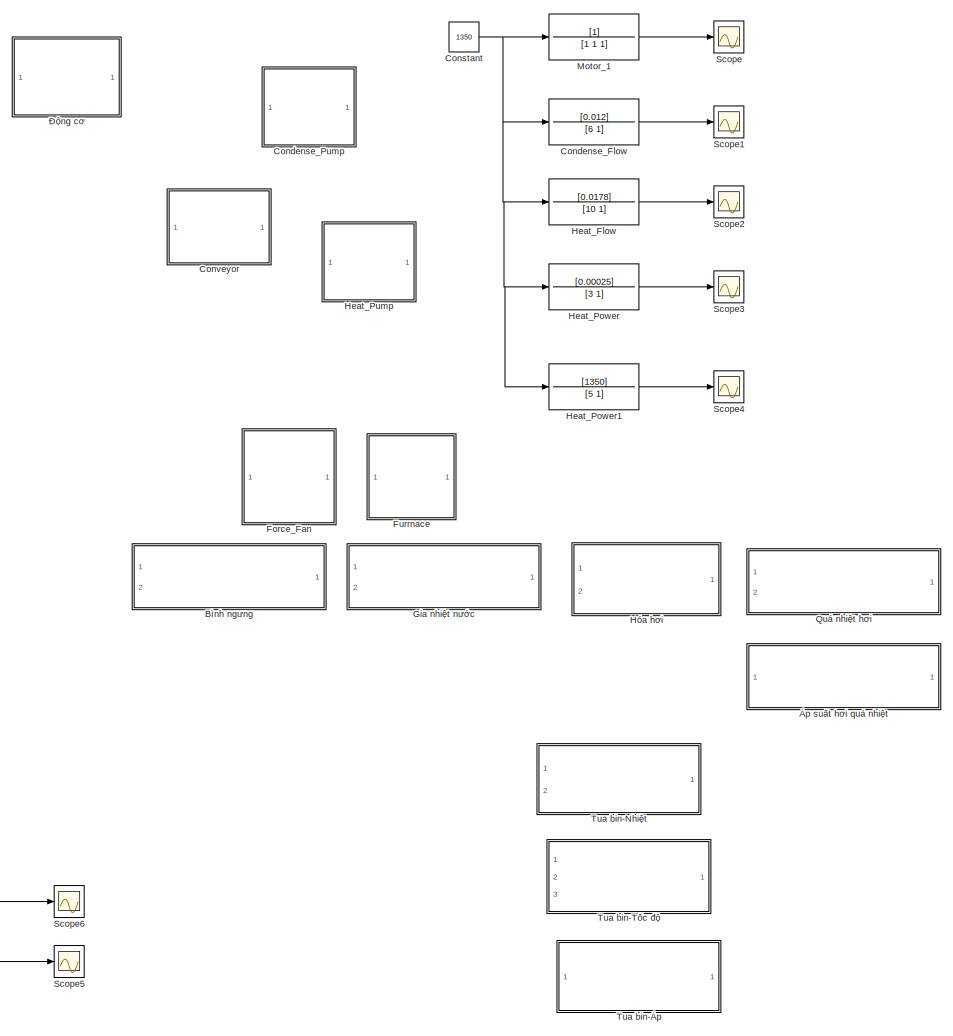
[diagram: root canvas - part 1/2, right side, full height]
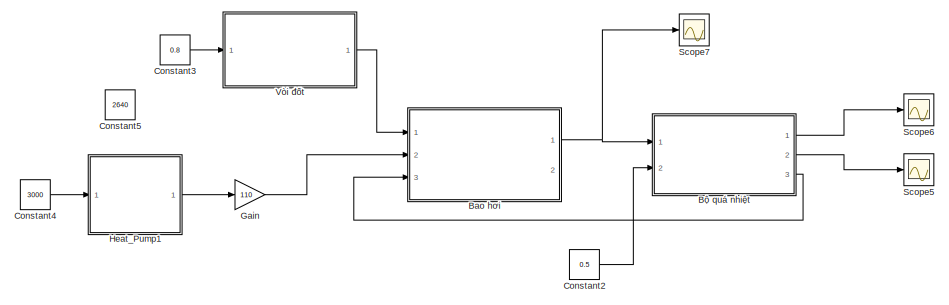
[diagram: root canvas - part 2/2, bottom left region]
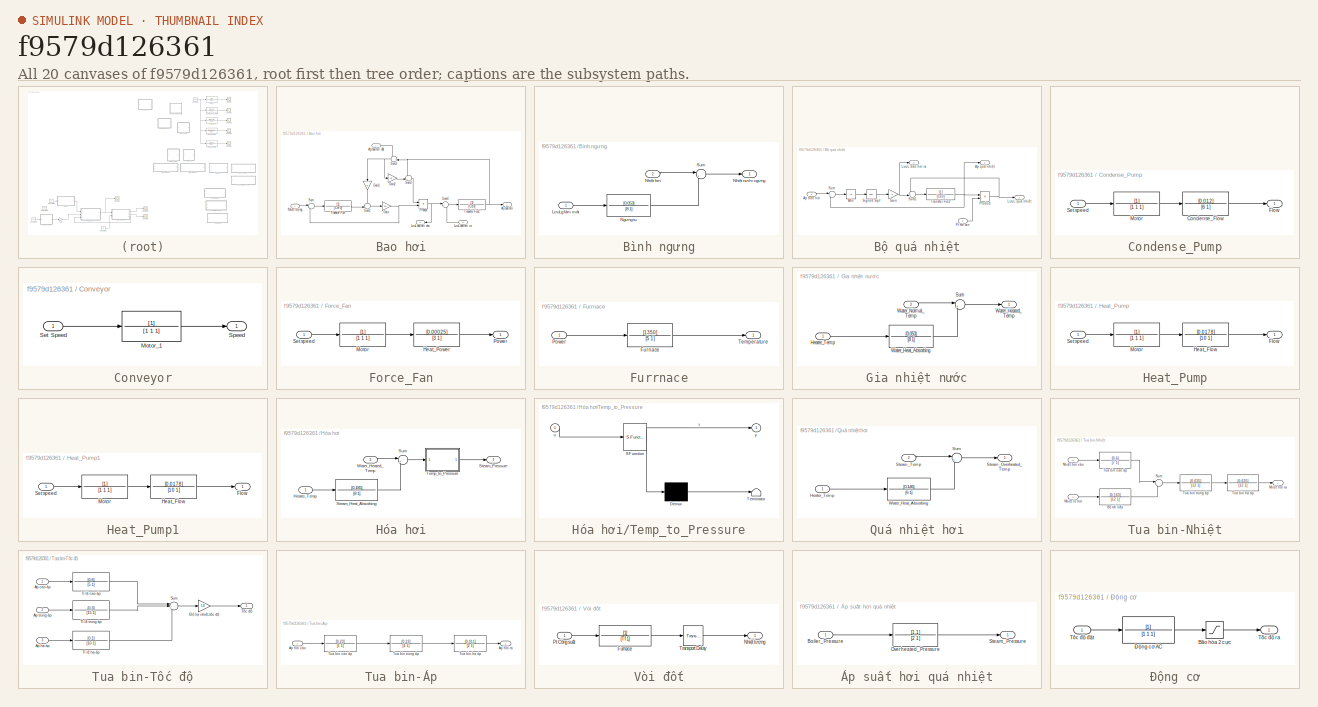
[diagram: thumbnail index - all 20 canvases of the model, root first then tree order]
MODEL slx_f9579d126361
KIND model
CONFIG AbsTol = auto
CONFIG EnableMultiTasking = off
CONFIG FixedStep = 0.05
CONFIG MaxStep = auto
CONFIG MinStep = auto
CONFIG RelTol = 1e-3
CONFIG SampleTimeConstraint = Unconstrained
CONFIG Solver = ode5
CONFIG SolverName = ode5
CONFIG StartTime = 0.0
CONFIG StopTime = 1000
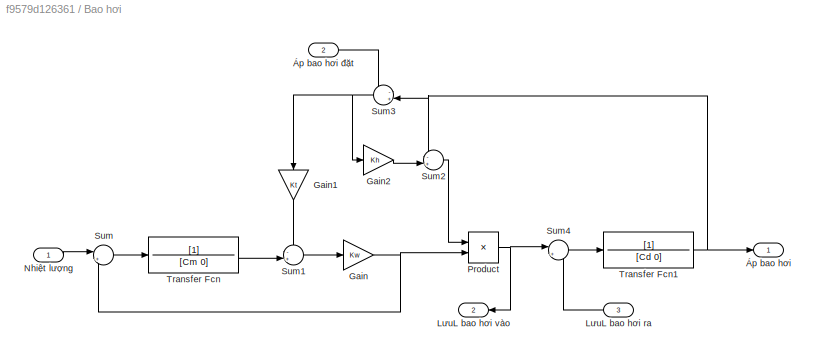
BLOCK [SubSystem] Bao hơi
  Ports = [3, 2]
  RequestExecContextInheritance = off
BLOCK [Gain] Bao hơi/Gain
  Gain = Kw
  OutDataTypeStr = Inherit: Inherit via internal rule
  ParamDataTypeStr = Inherit: Inherit via internal rule
  SaturateOnIntegerOverflow = off
BLOCK [Gain] Bao hơi/Gain1
  Gain = Kt
  OutDataTypeStr = Inherit: Inherit via internal rule
  ParamDataTypeStr = Inherit: Inherit via internal rule
  SaturateOnIntegerOverflow = off
BLOCK [Gain] Bao hơi/Gain2
  Gain = Kh
  OutDataTypeStr = Inherit: Inherit via internal rule
  ParamDataTypeStr = Inherit: Inherit via internal rule
  SaturateOnIntegerOverflow = off
BLOCK [Inport] Bao hơi/LưuL bao hơi ra
  IconDisplay = Port number
  Port = 3
BLOCK [Outport] Bao hơi/LưuL bao hơi vào
  IconDisplay = Port number
  Port = 2
BLOCK [Inport] Bao hơi/Nhiệt lượng
  IconDisplay = Port number
BLOCK [Product] Bao hơi/Product
  InputSameDT = off
  OutDataTypeStr = Inherit: Inherit via internal rule
  Ports = [2, 1]
  RndMeth = Floor
  SaturateOnIntegerOverflow = off
BLOCK [Sum] Bao hơi/Sum
  IconShape = round
  InputSameDT = off
  Inputs = |+-
  OutDataTypeStr = Inherit: Inherit via internal rule
  Ports = [2, 1]
  SaturateOnIntegerOverflow = off
BLOCK [Sum] Bao hơi/Sum1
  IconShape = round
  InputSameDT = off
  Inputs = -+|
  OutDataTypeStr = Inherit: Inherit via internal rule
  Ports = [2, 1]
  SaturateOnIntegerOverflow = off
BLOCK [Sum] Bao hơi/Sum2
  IconShape = round
  InputSameDT = off
  Inputs = -+|
  OutDataTypeStr = Inherit: Inherit via internal rule
  Ports = [2, 1]
  SaturateOnIntegerOverflow = off
BLOCK [Sum] Bao hơi/Sum3
  IconShape = round
  InputSameDT = off
  Inputs = -+|
  OutDataTypeStr = Inherit: Inherit via internal rule
  Ports = [2, 1]
  SaturateOnIntegerOverflow = off
BLOCK [Sum] Bao hơi/Sum4
  IconShape = round
  InputSameDT = off
  Inputs = |+-
  OutDataTypeStr = Inherit: Inherit via internal rule
  Ports = [2, 1]
  SaturateOnIntegerOverflow = off
BLOCK [TransferFcn] Bao hơi/Transfer Fcn
  Denominator = [Cm 0]
BLOCK [TransferFcn] Bao hơi/Transfer Fcn1
  Denominator = [Cd 0]
BLOCK [Outport] Bao hơi/Áp bao hơi
  IconDisplay = Port number
BLOCK [Inport] Bao hơi/Áp bao hơi đặt
  IconDisplay = Port number
  Port = 2
BLOCK [SubSystem] Bình ngưng
  Ports = [2, 1]
  RequestExecContextInheritance = off
BLOCK [Inport] Bình ngưng/LưuLg làm mát
  IconDisplay = Port number
BLOCK [TransferFcn] Bình ngưng/Ngưng tụ
  Denominator = [8 1]
  Numerator = [0.053]
BLOCK [Inport] Bình ngưng/Nhiệt hơi
  IconDisplay = Port number
  Port = 2
BLOCK [Outport] Bình ngưng/Nhiệt nước ngưng
  IconDisplay = Port number
BLOCK [Sum] Bình ngưng/Sum
  IconShape = round
  InputSameDT = off
  Inputs = |++
  OutDataTypeStr = Inherit: Inherit via internal rule
  Ports = [2, 1]
  SaturateOnIntegerOverflow = off
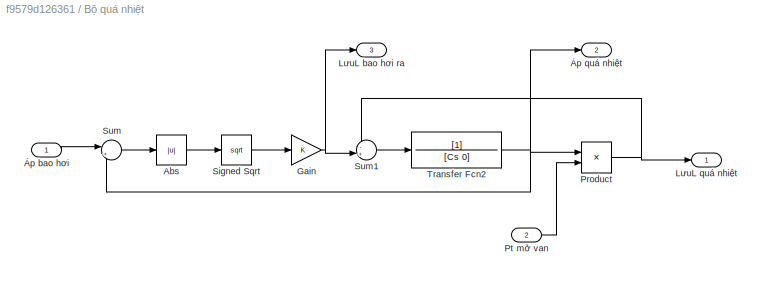
BLOCK [SubSystem] Bộ quá nhiệt
  Ports = [2, 3]
  RequestExecContextInheritance = off
BLOCK [Abs] Bộ quá nhiệt/Abs
  SaturateOnIntegerOverflow = off
BLOCK [Gain] Bộ quá nhiệt/Gain
  Gain = K
  OutDataTypeStr = Inherit: Inherit via internal rule
  ParamDataTypeStr = Inherit: Inherit via internal rule
  SaturateOnIntegerOverflow = off
BLOCK [Outport] Bộ quá nhiệt/LưuL bao hơi ra
  IconDisplay = Port number
  Port = 3
BLOCK [Outport] Bộ quá nhiệt/LưuL quá nhiệt
  IconDisplay = Port number
BLOCK [Product] Bộ quá nhiệt/Product
  InputSameDT = off
  OutDataTypeStr = Inherit: Inherit via internal rule
  Ports = [2, 1]
  RndMeth = Floor
  SaturateOnIntegerOverflow = off
BLOCK [Inport] Bộ quá nhiệt/Pt mở van
  IconDisplay = Port number
  Port = 2
BLOCK [Sqrt] Bộ quá nhiệt/Signed Sqrt
BLOCK [Sum] Bộ quá nhiệt/Sum
  IconShape = round
  InputSameDT = off
  Inputs = |+-
  OutDataTypeStr = Inherit: Inherit via internal rule
  Ports = [2, 1]
  SaturateOnIntegerOverflow = off
BLOCK [Sum] Bộ quá nhiệt/Sum1
  IconShape = round
  InputSameDT = off
  Inputs = -+|
  OutDataTypeStr = Inherit: Inherit via internal rule
  Ports = [2, 1]
  SaturateOnIntegerOverflow = off
BLOCK [TransferFcn] Bộ quá nhiệt/Transfer Fcn2
  Denominator = [Cs 0]
BLOCK [Inport] Bộ quá nhiệt/Áp bao hơi
  IconDisplay = Port number
BLOCK [Outport] Bộ quá nhiệt/Áp quá nhiệt
  IconDisplay = Port number
  Port = 2
BLOCK [TransferFcn] Condense_Flow
  Denominator = [6 1]
  Numerator = [0.012]
BLOCK [SubSystem] Condense_Pump
  Ports = [1, 1]
  RequestExecContextInheritance = off
BLOCK [TransferFcn] Condense_Pump/Condense_Flow
  Denominator = [6 1]
  Numerator = [0.012]
BLOCK [Outport] Condense_Pump/Flow
  IconDisplay = Port number
BLOCK [TransferFcn] Condense_Pump/Motor
  Denominator = [1 1 1]
BLOCK [Inport] Condense_Pump/Set speed
  IconDisplay = Port number
BLOCK [Constant] Constant
  Value = 1350
BLOCK [Constant] Constant2
  Value = 0.5
BLOCK [Constant] Constant3
  Value = 0.8
BLOCK [Constant] Constant4
  Value = 3000
BLOCK [Constant] Constant5
  Value = 2640
BLOCK [SubSystem] Conveyor
  Ports = [1, 1]
  RequestExecContextInheritance = off
BLOCK [TransferFcn] Conveyor/Motor_1
  Denominator = [1 1 1]
BLOCK [Inport] Conveyor/Set Speed
  IconDisplay = Port number
BLOCK [Outport] Conveyor/Speed
  IconDisplay = Port number
BLOCK [SubSystem] Force_Fan
  Ports = [1, 1]
  RequestExecContextInheritance = off
BLOCK [TransferFcn] Force_Fan/Heat_Power
  Denominator = [3 1]
  Numerator = [0.00025]
BLOCK [TransferFcn] Force_Fan/Motor
  Denominator = [1 1 1]
BLOCK [Outport] Force_Fan/Power
  IconDisplay = Port number
BLOCK [Inport] Force_Fan/Set speed
  IconDisplay = Port number
BLOCK [SubSystem] Furrnace
  Ports = [1, 1]
  RequestExecContextInheritance = off
BLOCK [TransferFcn] Furrnace/Furnace
  Denominator = [5 1]
  Numerator = [1350]
BLOCK [Inport] Furrnace/Power
  IconDisplay = Port number
BLOCK [Outport] Furrnace/Temperature
  IconDisplay = Port number
BLOCK [Gain] Gain
  Gain = 110
  OutDataTypeStr = Inherit: Inherit via internal rule
  ParamDataTypeStr = Inherit: Inherit via internal rule
  SaturateOnIntegerOverflow = off
BLOCK [SubSystem] Gia nhiệt nước
  Ports = [2, 1]
  RequestExecContextInheritance = off
BLOCK [Inport] Gia nhiệt nước/Heater_Temp
  IconDisplay = Port number
BLOCK [Sum] Gia nhiệt nước/Sum
  IconShape = round
  InputSameDT = off
  Inputs = |++
  OutDataTypeStr = Inherit: Inherit via internal rule
  Ports = [2, 1]
  SaturateOnIntegerOverflow = off
BLOCK [TransferFcn] Gia nhiệt nước/Water_Heat_Absorbing
  Denominator = [8 1]
  Numerator = [0.053]
BLOCK [Outport] Gia nhiệt nước/Water_Heated_Temp
  IconDisplay = Port number
BLOCK [Inport] Gia nhiệt nước/Water_Normal_Temp
  IconDisplay = Port number
  Port = 2
BLOCK [TransferFcn] Heat_Flow
  Denominator = [10 1]
  Numerator = [0.0178]
BLOCK [TransferFcn] Heat_Power
  Denominator = [3 1]
  Numerator = [0.00025]
BLOCK [TransferFcn] Heat_Power1
  Denominator = [5 1]
  Numerator = [1350]
BLOCK [SubSystem] Heat_Pump
  Ports = [1, 1]
  RequestExecContextInheritance = off
BLOCK [Outport] Heat_Pump/Flow
  IconDisplay = Port number
BLOCK [TransferFcn] Heat_Pump/Heat_Flow
  Denominator = [10 1]
  Numerator = [0.0178]
BLOCK [TransferFcn] Heat_Pump/Motor
  Denominator = [1 1 1]
BLOCK [Inport] Heat_Pump/Set speed
  IconDisplay = Port number
BLOCK [SubSystem] Heat_Pump1
  Ports = [1, 1]
  RequestExecContextInheritance = off
BLOCK [Outport] Heat_Pump1/Flow
  IconDisplay = Port number
BLOCK [TransferFcn] Heat_Pump1/Heat_Flow
  Denominator = [10 1]
  Numerator = [0.0178]
BLOCK [TransferFcn] Heat_Pump1/Motor
  Denominator = [1 1 1]
BLOCK [Inport] Heat_Pump1/Set speed
  IconDisplay = Port number
BLOCK [SubSystem] Hóa hơi
  Ports = [2, 1]
  RequestExecContextInheritance = off
BLOCK [Inport] Hóa hơi/Heater_Temp
  IconDisplay = Port number
BLOCK [TransferFcn] Hóa hơi/Steam_Heat_Absorbing
  Denominator = [8 1]
  Numerator = [0.185]
BLOCK [Outport] Hóa hơi/Steam_Pressure
  IconDisplay = Port number
BLOCK [Sum] Hóa hơi/Sum
  IconShape = round
  InputSameDT = off
  Inputs = |++
  OutDataTypeStr = Inherit: Inherit via internal rule
  Ports = [2, 1]
  SaturateOnIntegerOverflow = off
BLOCK [SubSystem] Hóa hơi/Temp_to_Pressure
  ErrorFcn = Stateflow.Translate.translate
  PermitHierarchicalResolution = ExplicitOnly
  Ports = [1, 1]
  RequestExecContextInheritance = off
  SFBlockType = MATLAB Function
  TreatAsAtomicUnit = on
BLOCK [Demux] Hóa hơi/Temp_to_Pressure/ Demux 
  Outputs = 1
  Ports = [1, 1]
BLOCK [S-Function] Hóa hơi/Temp_to_Pressure/ SFunction 
  EnableBusSupport = on
  FunctionName = sf_sfun
  PortCounts = [1 2]
  Ports = [1, 2]
  SFcnIsStateOwnerBlock = off
  SFunctionDeploymentMode = off
  Tag = Stateflow S-Function Model 2
BLOCK [Terminator] Hóa hơi/Temp_to_Pressure/ Terminator 
BLOCK [Inport] Hóa hơi/Temp_to_Pressure/u
  IconDisplay = Port number
BLOCK [Outport] Hóa hơi/Temp_to_Pressure/y
  IconDisplay = Port number
BLOCK [Inport] Hóa hơi/Water_Heated_Temp
  IconDisplay = Port number
  Port = 2
BLOCK [TransferFcn] Motor_1
  Denominator = [1 1 1]
BLOCK [SubSystem] Quá nhiệt hơi
  Ports = [2, 1]
  RequestExecContextInheritance = off
BLOCK [Inport] Quá nhiệt hơi/Heater_Temp
  IconDisplay = Port number
BLOCK [Outport] Quá nhiệt hơi/Steam_Overheated_Temp
  IconDisplay = Port number
BLOCK [Inport] Quá nhiệt hơi/Steam_Temp
  IconDisplay = Port number
  Port = 2
BLOCK [Sum] Quá nhiệt hơi/Sum
  IconShape = round
  InputSameDT = off
  Inputs = |++
  OutDataTypeStr = Inherit: Inherit via internal rule
  Ports = [2, 1]
  SaturateOnIntegerOverflow = off
BLOCK [TransferFcn] Quá nhiệt hơi/Water_Heat_Absorbing
  Denominator = [6 1]
  Numerator = [0.146]
BLOCK [Scope] Scope
  Floating = off
  NumInputPorts = 1
  Ports = [1]
  ScopeSpecificationString = Simulink.scopes.TimeScopeBlockCfg('CurrentConfiguration', extmgr.ConfigurationSet(extmgr.Configuration('Core','General UI',true),extmgr.Configuration('Core','Source UI',true),extmgr.Configuration('Sources','WiredSimulink',true),extmgr.Configuration('Visuals','Time Domain',true,'SerializedDisplays',{struct('MinYLimReal','-196.25506','MaxYLimReal','1766.29552','YLabelReal','','MinYLimMag',' 0.00000'...<+1374ch>
BLOCK [Scope] Scope1
  Floating = off
  NumInputPorts = 1
  Ports = [1]
  ScopeSpecificationString = Simulink.scopes.TimeScopeBlockCfg('CurrentConfiguration', extmgr.ConfigurationSet(extmgr.Configuration('Core','General UI',true),extmgr.Configuration('Core','Source UI',true),extmgr.Configuration('Sources','WiredSimulink',true,'DataLoggingVariableName','ScopeData1'),extmgr.Configuration('Visuals','Time Domain',true,'SerializedDisplays',{struct('MinYLimReal','-2.025','MaxYLimReal','18.225','YLabelR...<+1437ch>
BLOCK [Scope] Scope2
  Floating = off
  NumInputPorts = 1
  Ports = [1]
  ScopeSpecificationString = Simulink.scopes.TimeScopeBlockCfg('CurrentConfiguration', extmgr.ConfigurationSet(extmgr.Configuration('Core','General UI',true),extmgr.Configuration('Core','Source UI',true),extmgr.Configuration('Sources','WiredSimulink',true,'DataLoggingVariableName','ScopeData2'),extmgr.Configuration('Visuals','Time Domain',true,'SerializedDisplays',{struct('MinYLimReal','-2.98351','MaxYLimReal','26.8516','YLab...<+1446ch>
BLOCK [Scope] Scope3
  Floating = off
  NumInputPorts = 1
  Ports = [1]
  ScopeSpecificationString = Simulink.scopes.TimeScopeBlockCfg('CurrentConfiguration', extmgr.ConfigurationSet(extmgr.Configuration('Core','General UI',true),extmgr.Configuration('Core','Source UI',true),extmgr.Configuration('Sources','WiredSimulink',true,'DataLoggingVariableName','ScopeData1'),extmgr.Configuration('Visuals','Time Domain',true,'SerializedDisplays',{struct('MinYLimReal','-0.04219','MaxYLimReal','0.37969','YLab...<+1442ch>
BLOCK [Scope] Scope4
  Floating = off
  NumInputPorts = 1
  Ports = [1]
  ScopeSpecificationString = Simulink.scopes.TimeScopeBlockCfg('CurrentConfiguration', extmgr.ConfigurationSet(extmgr.Configuration('Core','General UI',true),extmgr.Configuration('Core','Source UI',true),extmgr.Configuration('Sources','WiredSimulink',true,'DataLoggingVariableName','ScopeData2'),extmgr.Configuration('Visuals','Time Domain',true,'SerializedDisplays',{struct('MinYLimReal','-227802.15733','MaxYLimReal','2050219.4...<+1486ch>
BLOCK [Scope] Scope5
  Floating = off
  NumInputPorts = 1
  Ports = [1]
  ScopeSpecificationString = Simulink.scopes.TimeScopeBlockCfg('CurrentConfiguration', extmgr.ConfigurationSet(extmgr.Configuration('Core','General UI',true),extmgr.Configuration('Core','Source UI',true),extmgr.Configuration('Sources','WiredSimulink',true,'DataLoggingVariableName','ScopeData1'),extmgr.Configuration('Visuals','Time Domain',true,'SerializedDisplays',{struct('MinYLimReal','-486.39733','MaxYLimReal','4377.57595',...<+1466ch>
BLOCK [Scope] Scope6
  Floating = off
  NumInputPorts = 1
  Ports = [1]
  ScopeSpecificationString = Simulink.scopes.TimeScopeBlockCfg('CurrentConfiguration', extmgr.ConfigurationSet(extmgr.Configuration('Core','General UI',true),extmgr.Configuration('Core','Source UI',true),extmgr.Configuration('Sources','WiredSimulink',true,'DataLoggingVariableName','ScopeData2'),extmgr.Configuration('Visuals','Time Domain',true,'SerializedDisplays',{struct('MinYLimReal','-243.19866','MaxYLimReal','2188.78798',...<+1465ch>
BLOCK [Scope] Scope7
  Floating = off
  NumInputPorts = 1
  Ports = [1]
  ScopeSpecificationString = Simulink.scopes.TimeScopeBlockCfg('CurrentConfiguration', extmgr.ConfigurationSet(extmgr.Configuration('Core','General UI',true),extmgr.Configuration('Core','Source UI',true),extmgr.Configuration('Sources','WiredSimulink',true,'DataLoggingVariableName','ScopeData3'),extmgr.Configuration('Visuals','Time Domain',true,'SerializedDisplays',{struct('MinYLimReal','2622.18889','MaxYLimReal','2633.67077',...<+1464ch>
BLOCK [SubSystem] Tua bin-Nhiệt
  Ports = [2, 1]
  RequestExecContextInheritance = off
BLOCK [TransferFcn] Tua bin-Nhiệt/Bộ tái sấy
  Denominator = [12 1]
  Numerator = [0.163]
BLOCK [Outport] Tua bin-Nhiệt/Nhiệt hơi ra
  IconDisplay = Port number
BLOCK [Inport] Tua bin-Nhiệt/Nhiệt hơi vào
  IconDisplay = Port number
  Port = 2
BLOCK [Inport] Tua bin-Nhiệt/Nhiệt lò hơi
  IconDisplay = Port number
BLOCK [Sum] Tua bin-Nhiệt/Sum
  IconShape = round
  InputSameDT = off
  Inputs = |++
  OutDataTypeStr = Inherit: Inherit via internal rule
  Ports = [2, 1]
  SaturateOnIntegerOverflow = off
BLOCK [TransferFcn] Tua bin-Nhiệt/Tua bin cao áp
  Denominator = [7 1]
  Numerator = [0.6]
BLOCK [TransferFcn] Tua bin-Nhiệt/Tua bin hạ áp
  Denominator = [12 1]
  Numerator = [0.635]
BLOCK [TransferFcn] Tua bin-Nhiệt/Tua bin trung áp
  Denominator = [12 1]
  Numerator = [0.635]
BLOCK [SubSystem] Tua bin-Tốc độ
  Ports = [3, 1]
  RequestExecContextInheritance = off
BLOCK [Sum] Tua bin-Tốc độ/Sum
  IconShape = round
  InputSameDT = off
  Inputs = |+++
  OutDataTypeStr = Inherit: Inherit via internal rule
  Ports = [3, 1]
  SaturateOnIntegerOverflow = off
BLOCK [TransferFcn] Tua bin-Tốc độ/Tỉ lệ cao áp
  Denominator = [5 1]
  Numerator = [0.6]
BLOCK [TransferFcn] Tua bin-Tốc độ/Tỉ lệ hạ áp
  Denominator = [10 1]
  Numerator = [0.1]
BLOCK [TransferFcn] Tua bin-Tốc độ/Tỉ lệ trung áp
  Denominator = [15 1]
  Numerator = [0.3]
BLOCK [Outport] Tua bin-Tốc độ/Tốc độ
  IconDisplay = Port number
BLOCK [Inport] Tua bin-Tốc độ/Áp cao áp
  IconDisplay = Port number
BLOCK [Inport] Tua bin-Tốc độ/Áp hạ áp
  IconDisplay = Port number
  Port = 3
BLOCK [Inport] Tua bin-Tốc độ/Áp trung áp
  IconDisplay = Port number
  Port = 2
BLOCK [Gain] Tua bin-Tốc độ/Độ lợi nhiệt-tốc độ
  Gain = 10
  OutDataTypeStr = Inherit: Inherit via internal rule
  ParamDataTypeStr = Inherit: Inherit via internal rule
  SaturateOnIntegerOverflow = off
BLOCK [SubSystem] Tua bin-Áp
  Ports = [1, 1]
  RequestExecContextInheritance = off
BLOCK [TransferFcn] Tua bin-Áp/Tua bin cao áp
  Denominator = [1 1]
  Numerator = [0.23]
BLOCK [TransferFcn] Tua bin-Áp/Tua bin hạ áp
  Denominator = [2 1]
  Numerator = [0.011]
BLOCK [TransferFcn] Tua bin-Áp/Tua bin trung áp
  Denominator = [4 1]
  Numerator = [0.23]
BLOCK [Outport] Tua bin-Áp/Áp hơi ra
  IconDisplay = Port number
BLOCK [Inport] Tua bin-Áp/Áp hơi vào
  IconDisplay = Port number
BLOCK [SubSystem] Vòi đốt
  Ports = [1, 1]
  RequestExecContextInheritance = off
BLOCK [TransferFcn] Vòi đốt/Furnace
  Denominator = [Tf 1]
BLOCK [Outport] Vòi đốt/Nhiệt lượng
  IconDisplay = Port number
BLOCK [Inport] Vòi đốt/Pt Công suất
  IconDisplay = Port number
BLOCK [TransportDelay] Vòi đốt/Transport Delay
  DelayTime = Td
  Ports = [1, 1]
BLOCK [SubSystem] Áp suất hơi quá nhiệt
  Ports = [1, 1]
  RequestExecContextInheritance = off
BLOCK [Inport] Áp suất hơi quá nhiệt/Boiler_Pressure
  IconDisplay = Port number
BLOCK [TransferFcn] Áp suất hơi quá nhiệt/Overheated_Pressure
  Denominator = [2 1]
  Numerator = [1.1]
BLOCK [Outport] Áp suất hơi quá nhiệt/Steam_Pressure
  IconDisplay = Port number
BLOCK [SubSystem] Động cơ
  Ports = [1, 1]
  RequestExecContextInheritance = off
BLOCK [Saturate] Động cơ/Bão hòa 2 cực
  InputPortMap = u0
  LowerLimit = 0
  Ports = [1, 1]
  UpperLimit = 1500
BLOCK [Outport] Động cơ/Tốc độ ra
  IconDisplay = Port number
BLOCK [Inport] Động cơ/Tốc độ đặt
  IconDisplay = Port number
BLOCK [TransferFcn] Động cơ/Động cơ AC
  Denominator = [1 1 1]
LINE Bao hơi/Gain1:1 -> Bao hơi/Sum1:1
LINE Bao hơi/Gain2:1 -> Bao hơi/Sum2:2
NET Bao hơi/Gain:1 -> Bao hơi/Product:2, Bao hơi/Sum:2
LINE Bao hơi/LưuL bao hơi ra:1 -> Bao hơi/Sum4:2
LINE Bao hơi/Nhiệt lượng:1 -> Bao hơi/Sum:1
NET Bao hơi/Product:1 -> Bao hơi/LưuL bao hơi vào:1, Bao hơi/Sum4:1
LINE Bao hơi/Sum1:1 -> Bao hơi/Gain:1
LINE Bao hơi/Sum2:1 -> Bao hơi/Product:1
NET Bao hơi/Sum3:1 -> Bao hơi/Gain1:1, Bao hơi/Gain2:1
LINE Bao hơi/Sum4:1 -> Bao hơi/Transfer Fcn1:1
LINE Bao hơi/Sum:1 -> Bao hơi/Transfer Fcn:1
NET Bao hơi/Transfer Fcn1:1 -> Bao hơi/Sum2:1, Bao hơi/Sum3:2, Bao hơi/Áp bao hơi:1
LINE Bao hơi/Transfer Fcn:1 -> Bao hơi/Sum1:2
LINE Bao hơi/Áp bao hơi đặt:1 -> Bao hơi/Sum3:1
NET Bao hơi:1 -> Bộ quá nhiệt:1, Scope7:1
LINE Bình ngưng/LưuLg làm mát:1 -> Bình ngưng/Ngưng tụ:1
LINE Bình ngưng/Ngưng tụ:1 -> Bình ngưng/Sum:2
LINE Bình ngưng/Nhiệt hơi:1 -> Bình ngưng/Sum:1
LINE Bình ngưng/Sum:1 -> Bình ngưng/Nhiệt nước ngưng:1
LINE Bộ quá nhiệt/Abs:1 -> Bộ quá nhiệt/Signed Sqrt:1
NET Bộ quá nhiệt/Gain:1 -> Bộ quá nhiệt/LưuL bao hơi ra:1, Bộ quá nhiệt/Sum1:2
NET Bộ quá nhiệt/Product:1 -> Bộ quá nhiệt/LưuL quá nhiệt:1, Bộ quá nhiệt/Sum1:1
LINE Bộ quá nhiệt/Pt mở van:1 -> Bộ quá nhiệt/Product:2
LINE Bộ quá nhiệt/Signed Sqrt:1 -> Bộ quá nhiệt/Gain:1
LINE Bộ quá nhiệt/Sum1:1 -> Bộ quá nhiệt/Transfer Fcn2:1
LINE Bộ quá nhiệt/Sum:1 -> Bộ quá nhiệt/Abs:1
NET Bộ quá nhiệt/Transfer Fcn2:1 -> Bộ quá nhiệt/Product:1, Bộ quá nhiệt/Sum:2, Bộ quá nhiệt/Áp quá nhiệt:1
LINE Bộ quá nhiệt/Áp bao hơi:1 -> Bộ quá nhiệt/Sum:1
LINE Bộ quá nhiệt:1 -> Scope6:1
LINE Bộ quá nhiệt:2 -> Scope5:1
LINE Bộ quá nhiệt:3 -> Bao hơi:3
LINE Condense_Flow:1 -> Scope1:1
LINE Condense_Pump/Condense_Flow:1 -> Condense_Pump/Flow:1
LINE Condense_Pump/Motor:1 -> Condense_Pump/Condense_Flow:1
LINE Condense_Pump/Set speed:1 -> Condense_Pump/Motor:1
LINE Constant2:1 -> Bộ quá nhiệt:2
LINE Constant3:1 -> Vòi đốt:1
LINE Constant4:1 -> Heat_Pump1:1
NET Constant:1 -> Condense_Flow:1, Heat_Flow:1, Heat_Power1:1, Heat_Power:1, Motor_1:1
LINE Conveyor/Motor_1:1 -> Conveyor/Speed:1
LINE Conveyor/Set Speed:1 -> Conveyor/Motor_1:1
LINE Force_Fan/Heat_Power:1 -> Force_Fan/Power:1
LINE Force_Fan/Motor:1 -> Force_Fan/Heat_Power:1
LINE Force_Fan/Set speed:1 -> Force_Fan/Motor:1
LINE Furrnace/Furnace:1 -> Furrnace/Temperature:1
LINE Furrnace/Power:1 -> Furrnace/Furnace:1
LINE Gain:1 -> Bao hơi:2
LINE Gia nhiệt nước/Heater_Temp:1 -> Gia nhiệt nước/Water_Heat_Absorbing:1
LINE Gia nhiệt nước/Sum:1 -> Gia nhiệt nước/Water_Heated_Temp:1
LINE Gia nhiệt nước/Water_Heat_Absorbing:1 -> Gia nhiệt nước/Sum:2
LINE Gia nhiệt nước/Water_Normal_Temp:1 -> Gia nhiệt nước/Sum:1
LINE Heat_Flow:1 -> Scope2:1
LINE Heat_Power1:1 -> Scope4:1
LINE Heat_Power:1 -> Scope3:1
LINE Heat_Pump/Heat_Flow:1 -> Heat_Pump/Flow:1
LINE Heat_Pump/Motor:1 -> Heat_Pump/Heat_Flow:1
LINE Heat_Pump/Set speed:1 -> Heat_Pump/Motor:1
LINE Heat_Pump1/Heat_Flow:1 -> Heat_Pump1/Flow:1
LINE Heat_Pump1/Motor:1 -> Heat_Pump1/Heat_Flow:1
LINE Heat_Pump1/Set speed:1 -> Heat_Pump1/Motor:1
LINE Heat_Pump1:1 -> Gain:1
LINE Hóa hơi/Heater_Temp:1 -> Hóa hơi/Steam_Heat_Absorbing:1
LINE Hóa hơi/Steam_Heat_Absorbing:1 -> Hóa hơi/Sum:2
LINE Hóa hơi/Sum:1 -> Hóa hơi/Temp_to_Pressure:1
LINE Hóa hơi/Temp_to_Pressure:1 -> Hóa hơi/Steam_Pressure:1
LINE Hóa hơi/Water_Heated_Temp:1 -> Hóa hơi/Sum:1
LINE Motor_1:1 -> Scope:1
LINE Quá nhiệt hơi/Heater_Temp:1 -> Quá nhiệt hơi/Water_Heat_Absorbing:1
LINE Quá nhiệt hơi/Steam_Temp:1 -> Quá nhiệt hơi/Sum:1
LINE Quá nhiệt hơi/Sum:1 -> Quá nhiệt hơi/Steam_Overheated_Temp:1
LINE Quá nhiệt hơi/Water_Heat_Absorbing:1 -> Quá nhiệt hơi/Sum:2
LINE Tua bin-Nhiệt/Bộ tái sấy:1 -> Tua bin-Nhiệt/Sum:2
LINE Tua bin-Nhiệt/Nhiệt hơi vào:1 -> Tua bin-Nhiệt/Tua bin cao áp:1
LINE Tua bin-Nhiệt/Nhiệt lò hơi:1 -> Tua bin-Nhiệt/Bộ tái sấy:1
LINE Tua bin-Nhiệt/Sum:1 -> Tua bin-Nhiệt/Tua bin trung áp:1
LINE Tua bin-Nhiệt/Tua bin cao áp:1 -> Tua bin-Nhiệt/Sum:1
LINE Tua bin-Nhiệt/Tua bin hạ áp:1 -> Tua bin-Nhiệt/Nhiệt hơi ra:1
LINE Tua bin-Nhiệt/Tua bin trung áp:1 -> Tua bin-Nhiệt/Tua bin hạ áp:1
LINE Tua bin-Tốc độ/Sum:1 -> Tua bin-Tốc độ/Độ lợi nhiệt-tốc độ:1
LINE Tua bin-Tốc độ/Tỉ lệ cao áp:1 -> Tua bin-Tốc độ/Sum:1
LINE Tua bin-Tốc độ/Tỉ lệ hạ áp:1 -> Tua bin-Tốc độ/Sum:3
LINE Tua bin-Tốc độ/Tỉ lệ trung áp:1 -> Tua bin-Tốc độ/Sum:2
LINE Tua bin-Tốc độ/Áp cao áp:1 -> Tua bin-Tốc độ/Tỉ lệ cao áp:1
LINE Tua bin-Tốc độ/Áp hạ áp:1 -> Tua bin-Tốc độ/Tỉ lệ hạ áp:1
LINE Tua bin-Tốc độ/Áp trung áp:1 -> Tua bin-Tốc độ/Tỉ lệ trung áp:1
LINE Tua bin-Tốc độ/Độ lợi nhiệt-tốc độ:1 -> Tua bin-Tốc độ/Tốc độ:1
LINE Tua bin-Áp/Tua bin cao áp:1 -> Tua bin-Áp/Tua bin trung áp:1
LINE Tua bin-Áp/Tua bin hạ áp:1 -> Tua bin-Áp/Áp hơi ra:1
LINE Tua bin-Áp/Tua bin trung áp:1 -> Tua bin-Áp/Tua bin hạ áp:1
LINE Tua bin-Áp/Áp hơi vào:1 -> Tua bin-Áp/Tua bin cao áp:1
LINE Vòi đốt/Furnace:1 -> Vòi đốt/Transport Delay:1
LINE Vòi đốt/Pt Công suất:1 -> Vòi đốt/Furnace:1
LINE Vòi đốt/Transport Delay:1 -> Vòi đốt/Nhiệt lượng:1
LINE Vòi đốt:1 -> Bao hơi:1
LINE Áp suất hơi quá nhiệt/Boiler_Pressure:1 -> Áp suất hơi quá nhiệt/Overheated_Pressure:1
LINE Áp suất hơi quá nhiệt/Overheated_Pressure:1 -> Áp suất hơi quá nhiệt/Steam_Pressure:1
LINE Động cơ/Bão hòa 2 cực:1 -> Động cơ/Tốc độ ra:1
LINE Động cơ/Tốc độ đặt:1 -> Động cơ/Động cơ AC:1
LINE Động cơ/Động cơ AC:1 -> Động cơ/Bão hòa 2 cực:1
note: NET lines group one-source signal fan-out (src -> all destinations, sorted); 1:1 wires keep LINE
CHART Hóa hơi/Temp_to_Pressure states=1 transitions=1
  STATE_LABEL 'eML_blk_kernel()'
  STATE_LABEL 'SCRIPT:\nfunction y = fcn(u)\nto = [29.95 32.89 41.53 45.82 52.57 60.08 69.12 75.87 81.33 93.5 99.62 109.32 ...\n    120.24 133.56 143.64 151.87 158.86 164.98 170.44 175.39 179.92 195.08 212.42 ...\n    233.89 250.39 263.98 285.86 311.03 342.34 357.04 365.80 373.70];\np = [0.004 0.005 0.008 0.01 0.018 0.02 0.03 0.04 0.05 0.08 0.1 0.14 0.2 0.3 0.4 ...\n    0.5 0.6 0.7 0.8 0.9 1 1.4 2 3 4 5 7 10 15 18 20 ...<+26ch>'
